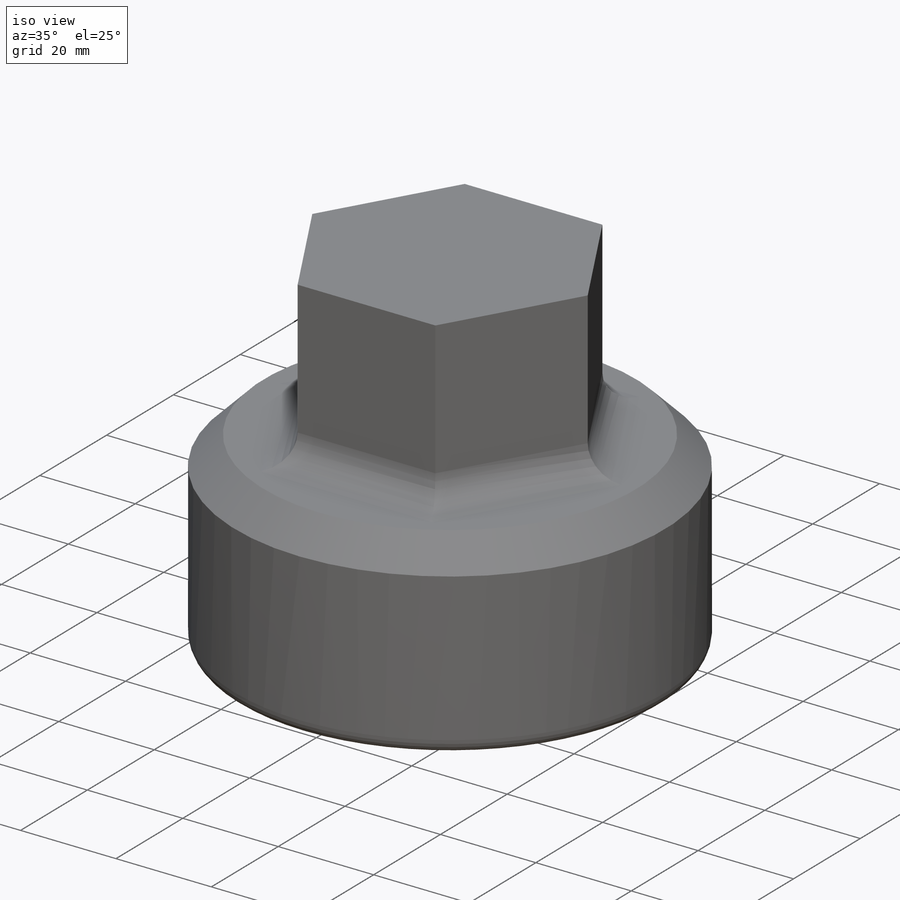
[diagram: iso view]
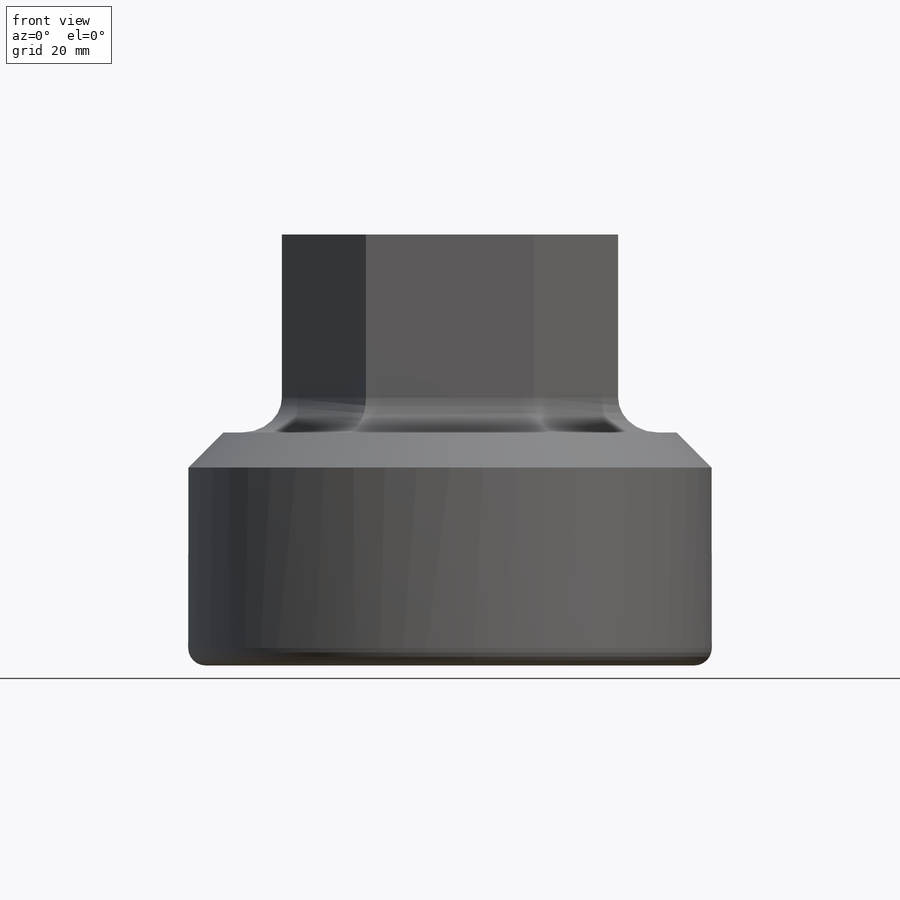
[diagram: front view]
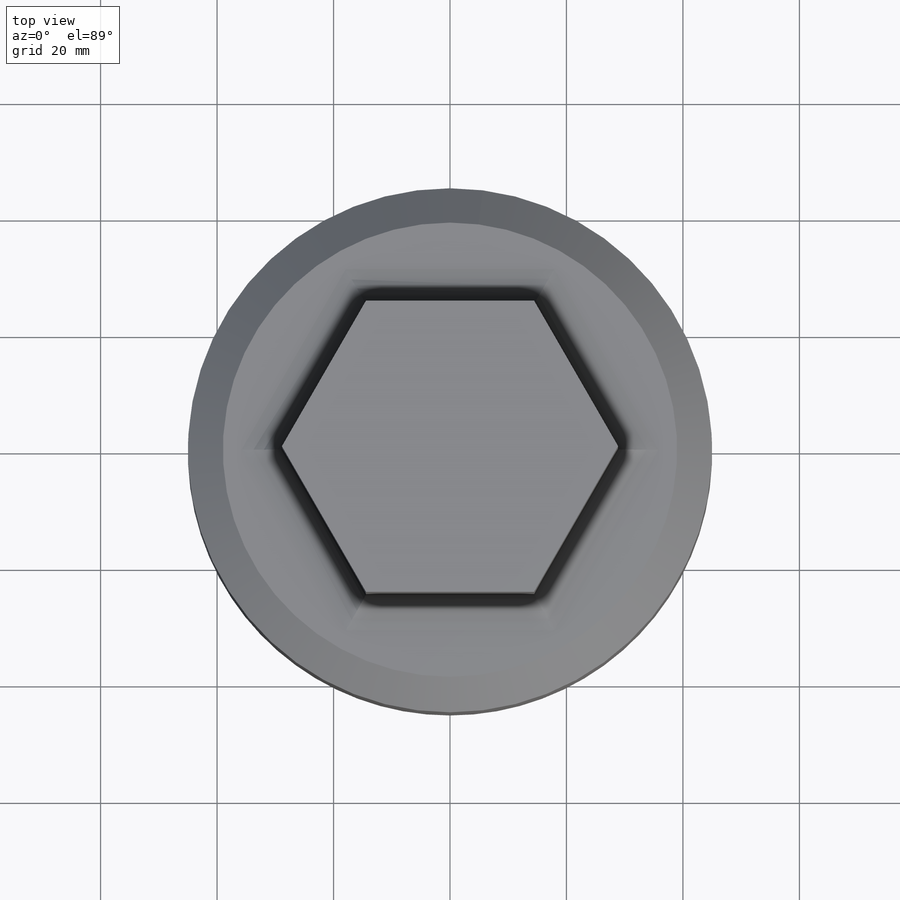
[diagram: top view]
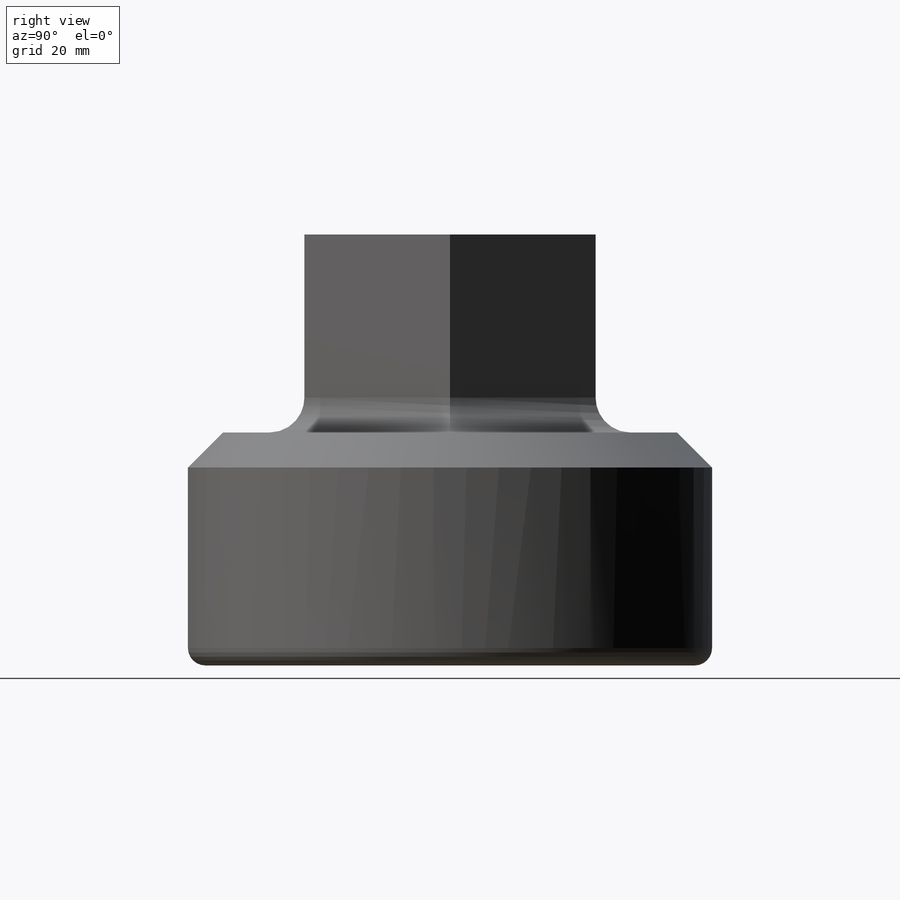
[diagram: right view]
SOLIDWORKS PART (.sldprt)
format: sldprt  version: not decoded by parser v0  size: 275,968 bytes
history: native  units: mm
features: sketch x4, extrude x3, fillet x3, material x1, chamfer x1, cut_extrude x1 (+11 scaffold rows collapsed)
feature tree (24):
  scaffold x11  (default folders/planes/origin — collapsed)
  material  "7050-T7651"
  sketch  "Sketch1"  dims[D2=90.0mm D1=65.5mm]
  extrude  "Boss-Extrude1"  Depth=34mm
  sketch  "Sketch2"
  extrude  "Boss-Extrude2"  Depth=6mm
  sketch  "Sketch3"  dims[D1=50.0mm]
  extrude  "Boss-Extrude3"  Depth=34mm
  fillet  "Fillet1"  Radius=6mm
  chamfer  "Chamfer1"  Distance=6mm Angle=45deg
  fillet  "Fillet2"  Radius=3mm
  fillet  "Fillet3"  Radius=6.35mm
  sketch  "Sketch4"  dims[D1=6.35mm D2=6.0]
  cut_extrude  "Cut-Extrude1"  [1 undecoded]
decode coverage: 10 of 12 modeling features carry decoded parameters
note: 1 parameter value undecoded
note: suppression state not decoded; provenance and decode notes live in map.json
